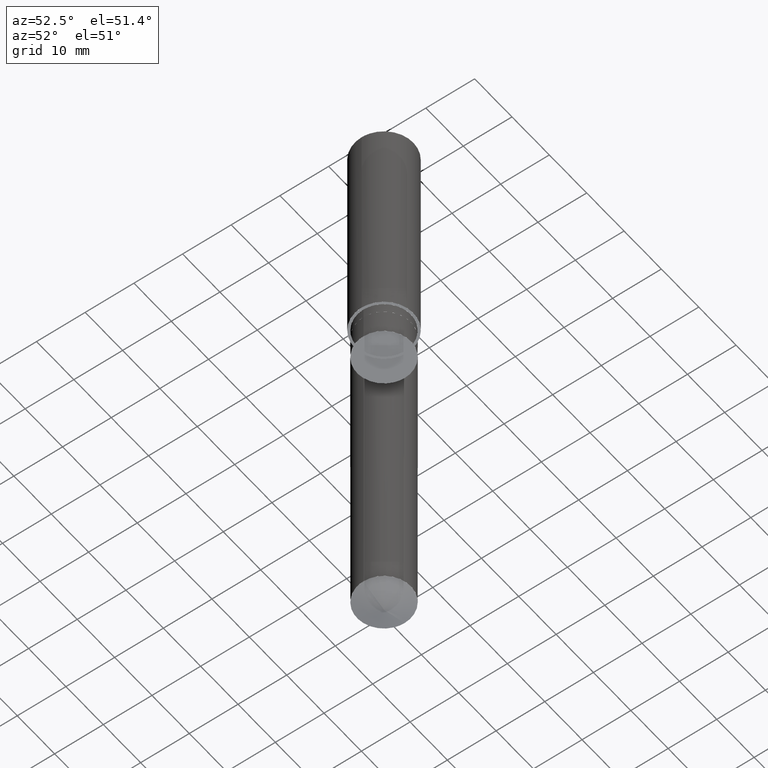
[diagram: clean part render]
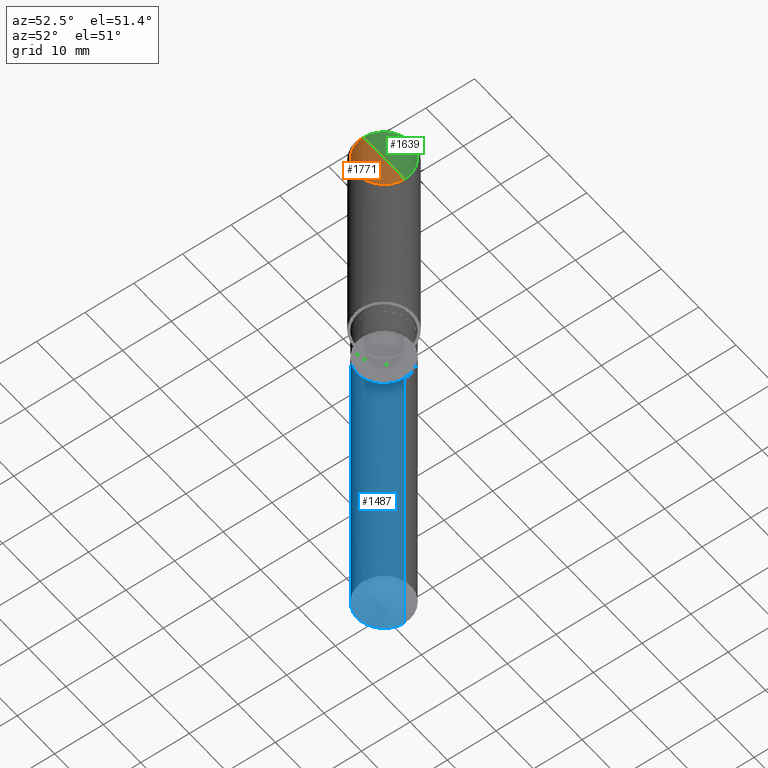
[diagram: same view with three faces highlighted in distinct colors, each labeled with its STEP entity id]
A machine part, auxiliary view with three faces highlighted in distinct colors.
Their STEP definitions:

[orange] entity #1771 — the highlighted face is a freeform B-spline surface patch.
#1374=CARTESIAN_POINT('',(5.5,0.0,45.0));
#1378=CARTESIAN_POINT('',(-5.5,0.0,45.0));
#1379=CARTESIAN_POINT('',(0.0,0.0,45.0));
#1392=CARTESIAN_POINT('',(-5.5,-5.5,45.0));
#1393=CARTESIAN_POINT('',(0.0,-5.5,45.0));
#1394=CARTESIAN_POINT('',(5.5,-5.5,45.0));
#1756=(
BOUNDED_SURFACE()
B_SPLINE_SURFACE(1,2,(
(#1378,#1392,#1393,#1394,#1374),
(#1379,#1379,#1379,#1379,#1379)
), .UNSPECIFIED.,.F.,.F.,.F.)
B_SPLINE_SURFACE_WITH_KNOTS((2,2),(3,2,3),(
0.0,1.0),(
0.0,0.5,1.0), .UNSPECIFIED.)
GEOMETRIC_REPRESENTATION_ITEM()
RATIONAL_B_SPLINE_SURFACE(((1.0,0.707106781187,1.0,0.707106781187,1.0),
(1.0,0.707106781187,1.0,0.707106781187,1.0)
))
REPRESENTATION_ITEM('')
SURFACE()
);
#1757=(
BOUNDED_CURVE()
B_SPLINE_CURVE(2,(#1374,#1394,#1393,#1392,#1378),.UNSPECIFIED.,.F.,.F.)
B_SPLINE_CURVE_WITH_KNOTS((3,2,3),
(0.0,0.5,1.0),.UNSPECIFIED.)
CURVE()
GEOMETRIC_REPRESENTATION_ITEM()
RATIONAL_B_SPLINE_CURVE((1.0,0.707106781187,1.0,0.707106781187,1.0))
REPRESENTATION_ITEM('')
);
#1758=(
BOUNDED_CURVE()
B_SPLINE_CURVE(1,(#1378,#1379),.UNSPECIFIED.,.F.,.F.)
B_SPLINE_CURVE_WITH_KNOTS((2,2),
(0.0,1.0),.UNSPECIFIED.)
CURVE()
GEOMETRIC_REPRESENTATION_ITEM()
RATIONAL_B_SPLINE_CURVE((1.0,1.0))
REPRESENTATION_ITEM('')
);
#1759=(
BOUNDED_CURVE()
B_SPLINE_CURVE(1,(#1379,#1374),.UNSPECIFIED.,.F.,.F.)
B_SPLINE_CURVE_WITH_KNOTS((2,2),
(0.0,1.0),.UNSPECIFIED.)
CURVE()
GEOMETRIC_REPRESENTATION_ITEM()
RATIONAL_B_SPLINE_CURVE((1.0,1.0))
REPRESENTATION_ITEM('')
);
#1760=VERTEX_POINT('',#1374);
#1761=VERTEX_POINT('',#1378);
#1762=VERTEX_POINT('',#1379);
#1763=EDGE_CURVE('',#1760,#1761,#1757,.T.);
#1764=EDGE_CURVE('',#1761,#1762,#1758,.T.);
#1765=EDGE_CURVE('',#1762,#1760,#1759,.T.);
#1766=ORIENTED_EDGE('',*,*,#1763,.T.);
#1767=ORIENTED_EDGE('',*,*,#1764,.T.);
#1768=ORIENTED_EDGE('',*,*,#1765,.T.);
#1769=EDGE_LOOP('',(#1766,#1767,#1768));
#1770=FACE_OUTER_BOUND('',#1769,.T.);
#1771=ADVANCED_FACE('',(#1770),#1756,.T.);

[blue] entity #1487 — the highlighted face is a freeform B-spline surface patch.
#1337=CARTESIAN_POINT('',(5.5,0.0,-70.998163711536));
#1341=CARTESIAN_POINT('',(-5.5,0.0,-70.998163711536));
#1342=CARTESIAN_POINT('',(5.5,0.0,-7.0));
#1346=CARTESIAN_POINT('',(-5.5,0.0,-7.0));
#1348=CARTESIAN_POINT('',(-5.5,-5.5,-70.998163711536));
#1349=CARTESIAN_POINT('',(0.0,-5.5,-70.998163711536));
#1350=CARTESIAN_POINT('',(5.5,-5.5,-70.998163711536));
#1351=CARTESIAN_POINT('',(-5.5,-5.5,-7.0));
#1352=CARTESIAN_POINT('',(0.0,-5.5,-7.0));
#1353=CARTESIAN_POINT('',(5.5,-5.5,-7.0));
#1468=(
BOUNDED_SURFACE()
B_SPLINE_SURFACE(1,2,(
(#1341,#1348,#1349,#1350,#1337),
(#1346,#1351,#1352,#1353,#1342)
), .UNSPECIFIED.,.F.,.F.,.F.)
B_SPLINE_SURFACE_WITH_KNOTS((2,2),(3,2,3),(
0.0,1.0),(
0.0,0.5,1.0), .UNSPECIFIED.)
GEOMETRIC_REPRESENTATION_ITEM()
RATIONAL_B_SPLINE_SURFACE(((1.0,0.707106781187,1.0,0.707106781187,1.0),
(1.0,0.707106781187,1.0,0.707106781187,1.0)
))
REPRESENTATION_ITEM('')
SURFACE()
);
#1469=(
BOUNDED_CURVE()
B_SPLINE_CURVE(2,(#1337,#1350,#1349,#1348,#1341),.UNSPECIFIED.,.F.,.F.)
B_SPLINE_CURVE_WITH_KNOTS((3,2,3),
(0.0,0.5,1.0),.UNSPECIFIED.)
CURVE()
GEOMETRIC_REPRESENTATION_ITEM()
RATIONAL_B_SPLINE_CURVE((1.0,0.707106781187,1.0,0.707106781187,1.0))
REPRESENTATION_ITEM('')
);
#1470=(
BOUNDED_CURVE()
B_SPLINE_CURVE(1,(#1341,#1346),.UNSPECIFIED.,.F.,.F.)
B_SPLINE_CURVE_WITH_KNOTS((2,2),
(0.0,1.0),.UNSPECIFIED.)
CURVE()
GEOMETRIC_REPRESENTATION_ITEM()
RATIONAL_B_SPLINE_CURVE((1.0,1.0))
REPRESENTATION_ITEM('')
);
#1471=(
BOUNDED_CURVE()
B_SPLINE_CURVE(2,(#1346,#1351,#1352,#1353,#1342),.UNSPECIFIED.,.F.,.F.)
B_SPLINE_CURVE_WITH_KNOTS((3,2,3),
(0.0,0.5,1.0),.UNSPECIFIED.)
CURVE()
GEOMETRIC_REPRESENTATION_ITEM()
RATIONAL_B_SPLINE_CURVE((1.0,0.707106781187,1.0,0.707106781187,1.0))
REPRESENTATION_ITEM('')
);
#1472=(
BOUNDED_CURVE()
B_SPLINE_CURVE(1,(#1342,#1337),.UNSPECIFIED.,.F.,.F.)
B_SPLINE_CURVE_WITH_KNOTS((2,2),
(0.0,1.0),.UNSPECIFIED.)
CURVE()
GEOMETRIC_REPRESENTATION_ITEM()
RATIONAL_B_SPLINE_CURVE((1.0,1.0))
REPRESENTATION_ITEM('')
);
#1473=VERTEX_POINT('',#1337);
#1474=VERTEX_POINT('',#1341);
#1475=VERTEX_POINT('',#1342);
#1476=VERTEX_POINT('',#1346);
#1477=EDGE_CURVE('',#1473,#1474,#1469,.T.);
#1478=EDGE_CURVE('',#1474,#1476,#1470,.T.);
#1479=EDGE_CURVE('',#1476,#1475,#1471,.T.);
#1480=EDGE_CURVE('',#1475,#1473,#1472,.T.);
#1481=ORIENTED_EDGE('',*,*,#1477,.T.);
#1482=ORIENTED_EDGE('',*,*,#1478,.T.);
#1483=ORIENTED_EDGE('',*,*,#1479,.T.);
#1484=ORIENTED_EDGE('',*,*,#1480,.T.);
#1485=EDGE_LOOP('',(#1481,#1482,#1483,#1484));
#1486=FACE_OUTER_BOUND('',#1485,.T.);
#1487=ADVANCED_FACE('',(#1486),#1468,.T.);

[green] entity #1639 — the highlighted face is a freeform B-spline surface patch.
#1374=CARTESIAN_POINT('',(5.5,0.0,45.0));
#1375=CARTESIAN_POINT('',(5.5,5.5,45.0));
#1376=CARTESIAN_POINT('',(0.0,5.5,45.0));
#1377=CARTESIAN_POINT('',(-5.5,5.5,45.0));
#1378=CARTESIAN_POINT('',(-5.5,0.0,45.0));
#1379=CARTESIAN_POINT('',(0.0,0.0,45.0));
#1624=(
BOUNDED_SURFACE()
B_SPLINE_SURFACE(1,2,(
(#1374,#1375,#1376,#1377,#1378),
(#1379,#1379,#1379,#1379,#1379)
), .UNSPECIFIED.,.F.,.F.,.F.)
B_SPLINE_SURFACE_WITH_KNOTS((2,2),(3,2,3),(
0.0,1.0),(
0.0,0.5,1.0), .UNSPECIFIED.)
GEOMETRIC_REPRESENTATION_ITEM()
RATIONAL_B_SPLINE_SURFACE(((1.0,0.707106781187,1.0,0.707106781187,1.0),
(1.0,0.707106781187,1.0,0.707106781187,1.0)
))
REPRESENTATION_ITEM('')
SURFACE()
);
#1625=(
BOUNDED_CURVE()
B_SPLINE_CURVE(2,(#1378,#1377,#1376,#1375,#1374),.UNSPECIFIED.,.F.,.F.)
B_SPLINE_CURVE_WITH_KNOTS((3,2,3),
(0.0,0.5,1.0),.UNSPECIFIED.)
CURVE()
GEOMETRIC_REPRESENTATION_ITEM()
RATIONAL_B_SPLINE_CURVE((1.0,0.707106781187,1.0,0.707106781187,1.0))
REPRESENTATION_ITEM('')
);
#1626=(
BOUNDED_CURVE()
B_SPLINE_CURVE(1,(#1374,#1379),.UNSPECIFIED.,.F.,.F.)
B_SPLINE_CURVE_WITH_KNOTS((2,2),
(0.0,1.0),.UNSPECIFIED.)
CURVE()
GEOMETRIC_REPRESENTATION_ITEM()
RATIONAL_B_SPLINE_CURVE((1.0,1.0))
REPRESENTATION_ITEM('')
);
#1627=(
BOUNDED_CURVE()
B_SPLINE_CURVE(1,(#1379,#1378),.UNSPECIFIED.,.F.,.F.)
B_SPLINE_CURVE_WITH_KNOTS((2,2),
(0.0,1.0),.UNSPECIFIED.)
CURVE()
GEOMETRIC_REPRESENTATION_ITEM()
RATIONAL_B_SPLINE_CURVE((1.0,1.0))
REPRESENTATION_ITEM('')
);
#1628=VERTEX_POINT('',#1374);
#1629=VERTEX_POINT('',#1378);
#1630=VERTEX_POINT('',#1379);
#1631=EDGE_CURVE('',#1629,#1628,#1625,.T.);
#1632=EDGE_CURVE('',#1628,#1630,#1626,.T.);
#1633=EDGE_CURVE('',#1630,#1629,#1627,.T.);
#1634=ORIENTED_EDGE('',*,*,#1631,.T.);
#1635=ORIENTED_EDGE('',*,*,#1632,.T.);
#1636=ORIENTED_EDGE('',*,*,#1633,.T.);
#1637=EDGE_LOOP('',(#1634,#1635,#1636));
#1638=FACE_OUTER_BOUND('',#1637,.T.);
#1639=ADVANCED_FACE('',(#1638),#1624,.T.);